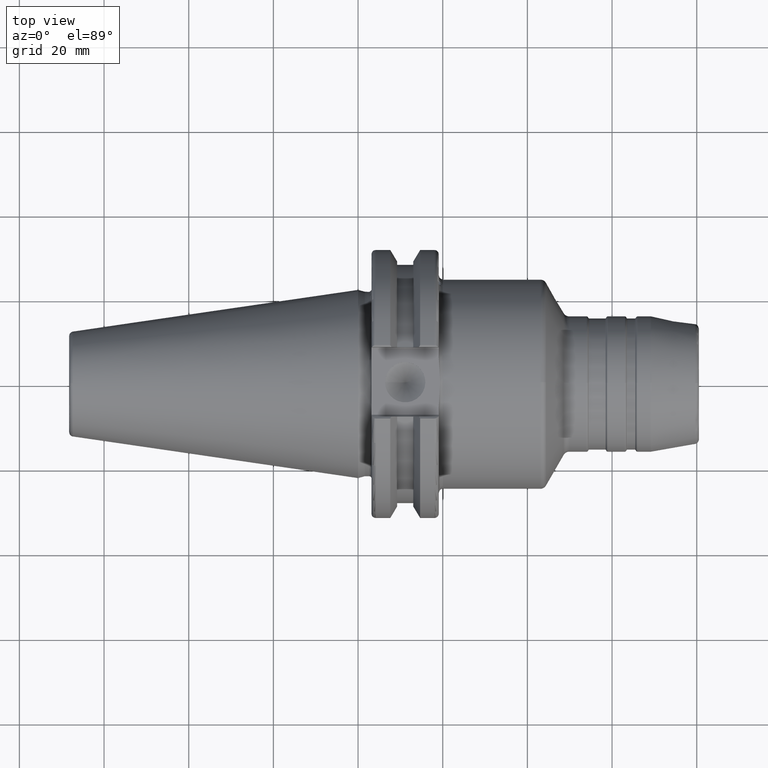
[diagram: clean part render]
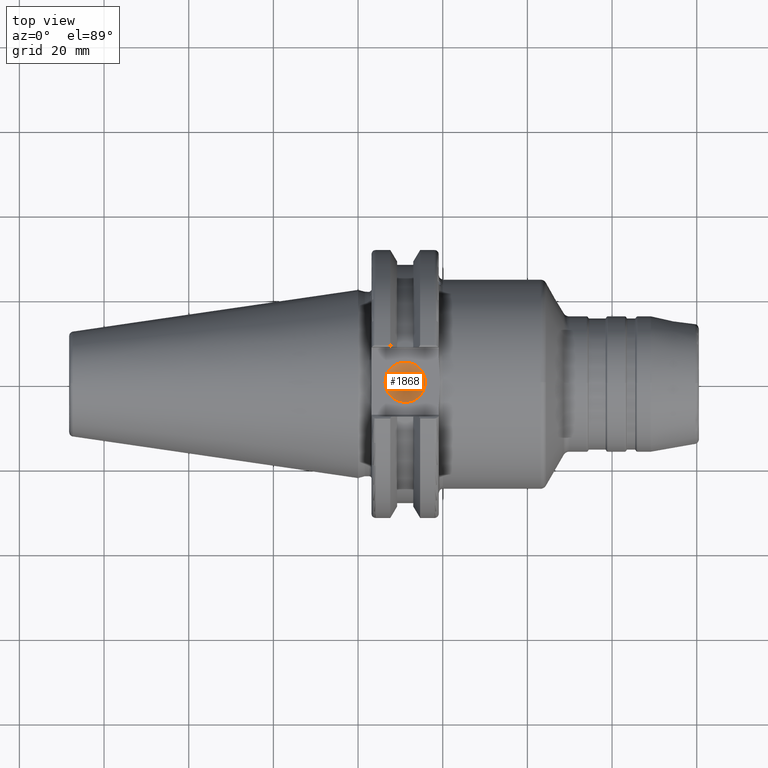
[diagram: same view with one face highlighted and labeled with its STEP entity id]
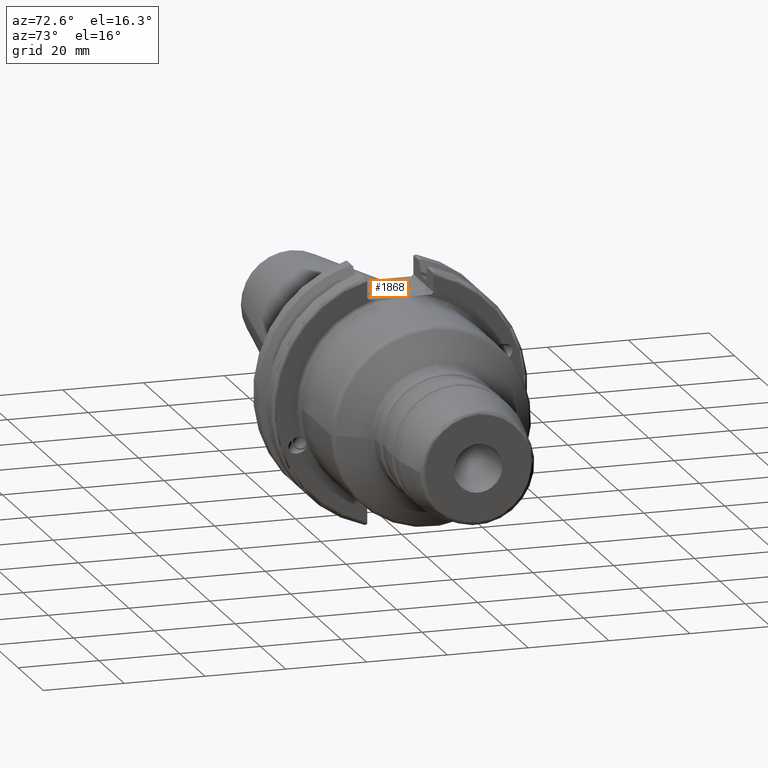
[diagram: same view with one face highlighted and labeled with its STEP entity id]
A machine part, top view. The second image highlights one B-rep face of the part: STEP entity #1868.
A second angle (auxiliary view) of the same face is appended — the face is thin or edge-on in the first view.
In plain terms, the highlighted conical surface has half-angle 59 deg.
Its self-contained STEP definition (entity closure, byte-faithful):
#90=CONICAL_SURFACE('',#2130,2.38125,1.02974425867665);
#256=FACE_OUTER_BOUND('',#377,.T.);
#377=EDGE_LOOP('',(#1668,#1669,#1670));
#485=LINE('',#3622,#579);
#579=VECTOR('',#2698,2.38125);
#697=CIRCLE('',#2131,4.7625);
#890=VERTEX_POINT('',#3619);
#891=VERTEX_POINT('',#3621);
#1161=EDGE_CURVE('',#890,#890,#697,.T.);
#1162=EDGE_CURVE('',#890,#891,#485,.T.);
#1668=ORIENTED_EDGE('',*,*,#1161,.T.);
#1669=ORIENTED_EDGE('',*,*,#1162,.T.);
#1670=ORIENTED_EDGE('',*,*,#1162,.F.);
#1868=ADVANCED_FACE('',(#256),#90,.F.);
#2130=AXIS2_PLACEMENT_3D('',#3618,#2694,#2695);
#2131=AXIS2_PLACEMENT_3D('',#3620,#2696,#2697);
#2694=DIRECTION('center_axis',(0.,0.,1.));
#2695=DIRECTION('ref_axis',(1.,0.,0.));
#2696=DIRECTION('center_axis',(0.,0.,1.));
#2697=DIRECTION('ref_axis',(1.,0.,0.));
#2698=DIRECTION('',(0.857167300702112,1.04972719113862E-16,-0.515038074910054));
#3618=CARTESIAN_POINT('Origin',(11.1341,0.,23.1692006509406));
#3619=CARTESIAN_POINT('',(6.3716,-5.83238038093927E-16,24.6));
#3620=CARTESIAN_POINT('Origin',(11.1341,0.,24.6));
#3621=CARTESIAN_POINT('',(11.1341,0.,21.7384013018812));
#3622=CARTESIAN_POINT('',(8.75285,-2.91619019046964E-16,23.1692006509406));